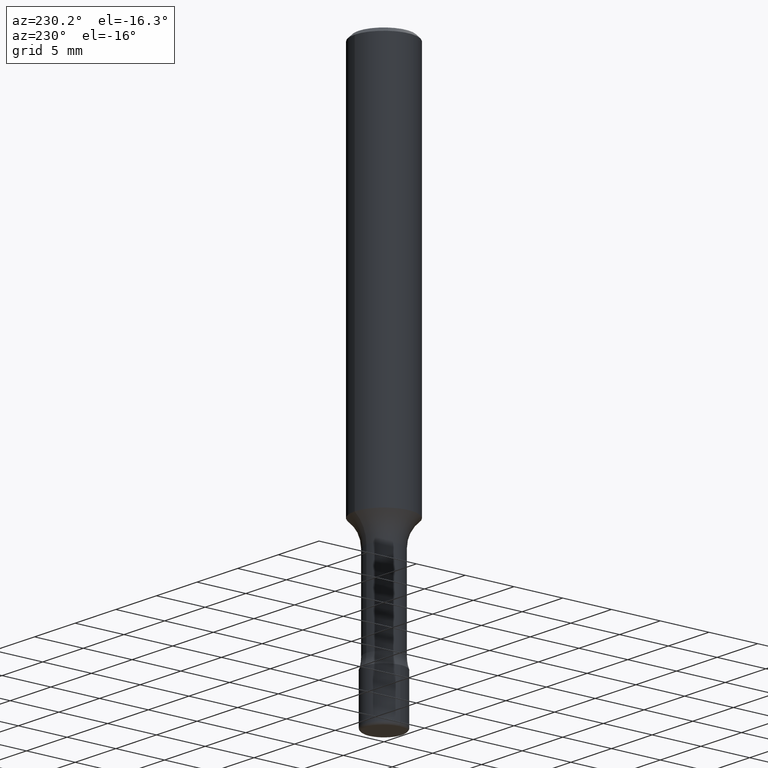
[diagram: clean part render]
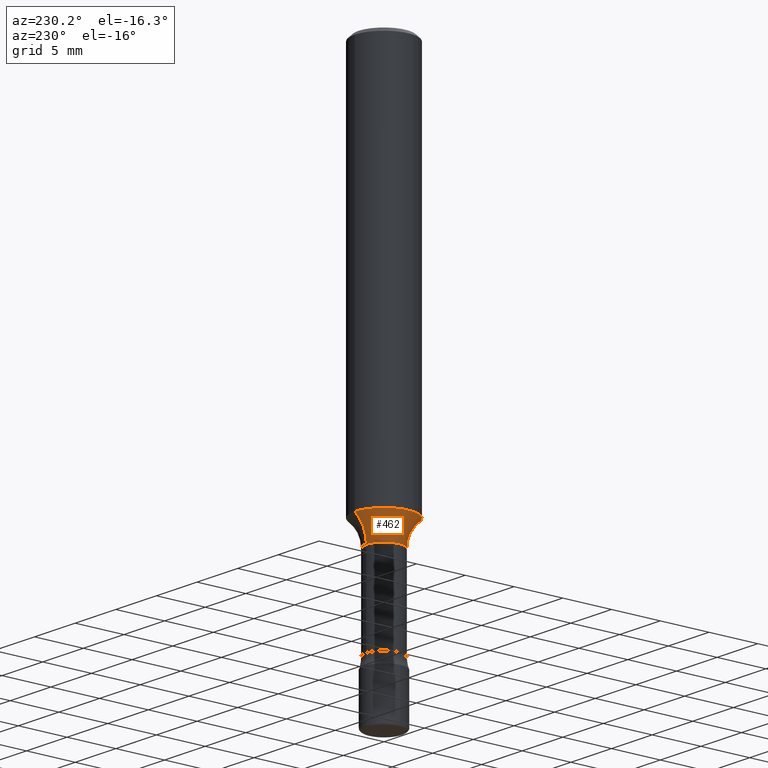
[diagram: same view with one face highlighted and labeled with its STEP entity id]
A machine part, auxiliary view. The second image highlights one B-rep face of the part: STEP entity #462.
In plain terms, the highlighted toroidal blend (fillet) surface has major radius 4.9784 mm and minor (blend) radius 3.175 mm.
Its self-contained STEP definition (entity closure, byte-faithful):
#2 = CARTESIAN_POINT ( 'NONE',  ( -4.957903501156845310E-16, -0.07100000000000578071, -1.653499999999999748 ) ) ;
#6 = CARTESIAN_POINT ( 'NONE',  ( 4.042623480343631628E-29, -5.774538009429644609E-15, -1.653499999999999970 ) ) ;
#18 = DIRECTION ( 'NONE',  ( 7.105427357600999492E-15, 1.000000000000000000, 0.000000000000000000 ) ) ;
#21 = ORIENTED_EDGE ( 'NONE', *, *, #404, .T. ) ;
#23 = CARTESIAN_POINT ( 'NONE',  ( 1.392663762089836453E-15, 0.1959999999999942066, -1.653500000000000858 ) ) ;
#25 = DIRECTION ( 'NONE',  ( -1.000000000000000000, 6.982962677686265922E-15, -4.883557194083112340E-29 ) ) ;
#35 = AXIS2_PLACEMENT_3D ( 'NONE', #257, #219, #429 ) ;
#43 = DIRECTION ( 'NONE',  ( -6.982962677686265922E-15, -1.000000000000000000, 3.847673230513046609E-15 ) ) ;
#48 = DIRECTION ( 'NONE',  ( -2.444888709007337080E-29, 3.492312071018835321E-15, 1.000000000000000000 ) ) ;
#66 = DIRECTION ( 'NONE',  ( 1.000000000000000000, -7.105427357601001070E-15, 4.926325682077081619E-29 ) ) ;
#90 = DIRECTION ( 'NONE',  ( -2.444888709007337080E-29, 3.492312071018835321E-15, 1.000000000000000000 ) ) ;
#118 = VERTEX_POINT ( 'NONE', #275 ) ;
#121 = CIRCLE ( 'NONE', #477, 0.07100000000000000755 ) ;
#130 = DIRECTION ( 'NONE',  ( -6.982962677686265922E-15, -1.000000000000000000, 3.492312071018835321E-15 ) ) ;
#155 = EDGE_LOOP ( 'NONE', ( #474, #274, #21, #191 ) ) ;
#160 = VERTEX_POINT ( 'NONE', #321 ) ;
#161 = FACE_OUTER_BOUND ( 'NONE', #155, .T. ) ;
#168 = CIRCLE ( 'NONE', #35, 0.1180999999999999966 ) ;
#182 = CARTESIAN_POINT ( 'NONE',  ( -1.368660684826467278E-15, -0.1960000000000057530, -1.653499999999999082 ) ) ;
#191 = ORIENTED_EDGE ( 'NONE', *, *, #212, .F. ) ;
#193 = VERTEX_POINT ( 'NONE', #238 ) ;
#198 = CARTESIAN_POINT ( 'NONE',  ( 4.043582671027123201E-29, -5.773164393777141072E-15, -1.653499999999999970 ) ) ;
#212 = EDGE_CURVE ( 'NONE', #118, #504, #345, .T. ) ;
#215 = EDGE_CURVE ( 'NONE', #160, #193, #364, .T. ) ;
#219 = DIRECTION ( 'NONE',  ( -2.444888709007337080E-29, 3.492312071018835321E-15, 1.000000000000000000 ) ) ;
#238 = CARTESIAN_POINT ( 'NONE',  ( 6.718181566612139372E-16, 0.07099999999999423439, -1.653500000000000192 ) ) ;
#257 = CARTESIAN_POINT ( 'NONE',  ( 3.803616507154480473E-29, -5.433137219098765341E-15, -1.555742187013006372 ) ) ;
#265 = AXIS2_PLACEMENT_3D ( 'NONE', #23, #66, #18 ) ;
#274 = ORIENTED_EDGE ( 'NONE', *, *, #215, .T. ) ;
#275 = CARTESIAN_POINT ( 'NONE',  ( -8.246878922347099042E-16, -0.1181000000000054229, -1.555742187013005928 ) ) ;
#309 = AXIS2_PLACEMENT_3D ( 'NONE', #198, #48, #130 ) ;
#319 = EDGE_CURVE ( 'NONE', #160, #118, #168, .T. ) ;
#321 = CARTESIAN_POINT ( 'NONE',  ( 8.391509709327163582E-16, 0.1180999999999945704, -1.555742187013007038 ) ) ;
#345 = CIRCLE ( 'NONE', #491, 0.1250000000000000000 ) ;
#355 = TOROIDAL_SURFACE ( 'NONE', #309, 0.1959999999999999798, 0.1250000000000000000 ) ;
#364 = CIRCLE ( 'NONE', #265, 0.1250000000000000000 ) ;
#390 = DIRECTION ( 'NONE',  ( -6.982962677686266711E-15, -1.000000000000000000, 0.000000000000000000 ) ) ;
#404 = EDGE_CURVE ( 'NONE', #193, #504, #121, .T. ) ;
#429 = DIRECTION ( 'NONE',  ( -6.982962677686265922E-15, -1.000000000000000000, 4.626330217890369336E-15 ) ) ;
#462 = ADVANCED_FACE ( 'NONE', ( #161 ), #355, .F. ) ;
#474 = ORIENTED_EDGE ( 'NONE', *, *, #319, .F. ) ;
#477 = AXIS2_PLACEMENT_3D ( 'NONE', #6, #90, #43 ) ;
#491 = AXIS2_PLACEMENT_3D ( 'NONE', #182, #25, #390 ) ;
#504 = VERTEX_POINT ( 'NONE', #2 ) ;